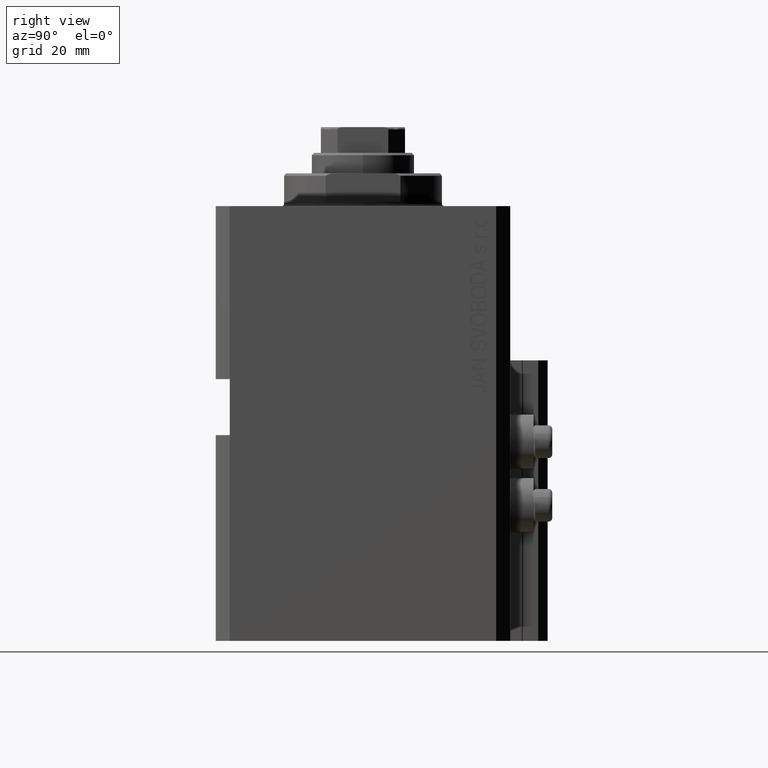
[diagram: clean part render]
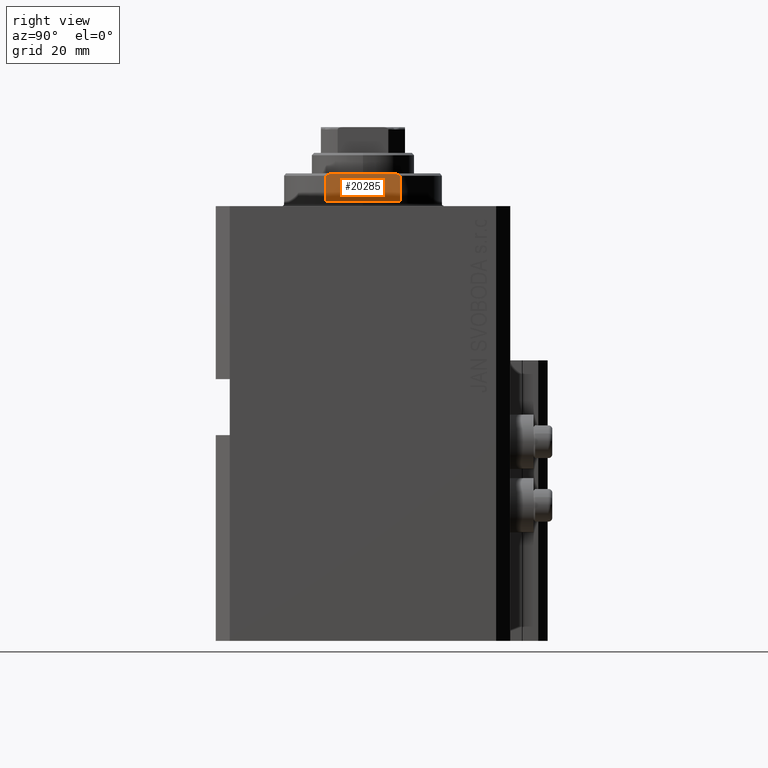
[diagram: same view with one face highlighted and labeled with its STEP entity id]
A machine part, right view. The second image highlights one B-rep face of the part: STEP entity #20285.
In plain terms, the highlighted planar face has unit normal (-1, 0, 0).
Its self-contained STEP definition (entity closure, byte-faithful):
#677 = EDGE_CURVE ( 'NONE', #8211, #29771, #726, .T. ) ;
#726 = B_SPLINE_CURVE_WITH_KNOTS ( 'NONE', 3,
 ( #40851, #4033, #11721, #23046 ),
 .UNSPECIFIED., .F., .F.,
 ( 4, 4 ),
 ( 0.04875332532859016216, 0.04998905627745618696 ),
 .UNSPECIFIED. ) ;
#1715 = CARTESIAN_POINT ( 'NONE',  ( -15.00000000000000000, -42.42640687119285303, -1.000000000000000000 ) ) ;
#2493 = LINE ( 'NONE', #28238, #42638 ) ;
#2594 = CARTESIAN_POINT ( 'NONE',  ( -15.00000000000000000, 8.000000000000001776, -6.500000000000000888 ) ) ;
#4033 = CARTESIAN_POINT ( 'NONE',  ( -15.00000000000000000, -7.254193676168137372, -6.841555306644506729 ) ) ;
#4868 = CARTESIAN_POINT ( 'NONE',  ( -15.00000000000000000, 7.253126193285938328, -6.842000017654663147 ) ) ;
#5120 = CARTESIAN_POINT ( 'NONE',  ( -15.00000000000000000, -8.000000000000001776, -6.500000000000000888 ) ) ;
#5575 = VECTOR ( 'NONE', #8681, 1000.000000000000000 ) ;
#5702 = EDGE_CURVE ( 'NONE', #18283, #8211, #2493, .T. ) ;
#6747 = CARTESIAN_POINT ( 'NONE',  ( -15.00000000000000000, -8.000000000000001776, -7.000000000000000000 ) ) ;
#7334 = CARTESIAN_POINT ( 'NONE',  ( -15.00000000000000000, 8.000000000000001776, -7.000000000000000000 ) ) ;
#7971 = PLANE ( 'NONE',  #33161 ) ;
#8211 = VERTEX_POINT ( 'NONE', #21203 ) ;
#8452 = DIRECTION ( 'NONE',  ( 0.000000000000000000, 0.000000000000000000, -1.000000000000000000 ) ) ;
#8681 = DIRECTION ( 'NONE',  ( -0.000000000000000000, -1.000000000000000000, -0.000000000000000000 ) ) ;
#11543 = ORIENTED_EDGE ( 'NONE', *, *, #5702, .T. ) ;
#11607 = VECTOR ( 'NONE', #14432, 1000.000000000000000 ) ;
#11721 = CARTESIAN_POINT ( 'NONE',  ( -15.00000000000000000, -7.629305121525813860, -6.674444648693738102 ) ) ;
#12318 = CARTESIAN_POINT ( 'NONE',  ( -14.99999999999999645, 6.873863542433781504, -7.000000000000000000 ) ) ;
#12806 = VECTOR ( 'NONE', #42969, 1000.000000000000000 ) ;
#14154 = VERTEX_POINT ( 'NONE', #2594 ) ;
#14432 = DIRECTION ( 'NONE',  ( 0.000000000000000000, 0.000000000000000000, -1.000000000000000000 ) ) ;
#18283 = VERTEX_POINT ( 'NONE', #40832 ) ;
#18680 = B_SPLINE_CURVE_WITH_KNOTS ( 'NONE', 3,
 ( #38783, #27008, #4868, #12318 ),
 .UNSPECIFIED., .F., .F.,
 ( 4, 4 ),
 ( 0.03336039268696994881, 0.03459498301323800373 ),
 .UNSPECIFIED. ) ;
#20285 = ADVANCED_FACE ( 'NONE', ( #23135 ), #7971, .F. ) ;
#21203 = CARTESIAN_POINT ( 'NONE',  ( -15.00000000000000000, -6.873863542433783280, -7.000000000000000000 ) ) ;
#21308 = LINE ( 'NONE', #7334, #12806 ) ;
#21653 = ORIENTED_EDGE ( 'NONE', *, *, #40698, .F. ) ;
#23046 = CARTESIAN_POINT ( 'NONE',  ( -15.00000000000000000, -8.000000000000001776, -6.500000000000000888 ) ) ;
#23135 = FACE_OUTER_BOUND ( 'NONE', #46153, .T. ) ;
#24628 = ORIENTED_EDGE ( 'NONE', *, *, #677, .T. ) ;
#25324 = EDGE_CURVE ( 'NONE', #31140, #29771, #28419, .T. ) ;
#26982 = CARTESIAN_POINT ( 'NONE',  ( -15.00000000000000000, -42.42640687119285303, -1.000000000000000000 ) ) ;
#27008 = CARTESIAN_POINT ( 'NONE',  ( -15.00000000000000000, 7.628315461082487481, -6.674910371255303509 ) ) ;
#27500 = EDGE_CURVE ( 'NONE', #36066, #31140, #41650, .T. ) ;
#28238 = CARTESIAN_POINT ( 'NONE',  ( -15.00000000000000000, -42.42640687119285303, -7.000000000000000000 ) ) ;
#28419 = LINE ( 'NONE', #6747, #11607 ) ;
#29771 = VERTEX_POINT ( 'NONE', #5120 ) ;
#30595 = DIRECTION ( 'NONE',  ( 1.000000000000000000, 0.000000000000000000, 0.000000000000000000 ) ) ;
#31046 = ORIENTED_EDGE ( 'NONE', *, *, #27500, .F. ) ;
#31140 = VERTEX_POINT ( 'NONE', #35612 ) ;
#32995 = EDGE_CURVE ( 'NONE', #14154, #18283, #18680, .T. ) ;
#33161 = AXIS2_PLACEMENT_3D ( 'NONE', #26982, #30595, #8452 ) ;
#35612 = CARTESIAN_POINT ( 'NONE',  ( -14.99999999999999645, -8.000000000000003553, -1.000000000000000000 ) ) ;
#35695 = DIRECTION ( 'NONE',  ( -0.000000000000000000, -1.000000000000000000, -0.000000000000000000 ) ) ;
#36066 = VERTEX_POINT ( 'NONE', #44006 ) ;
#38007 = ORIENTED_EDGE ( 'NONE', *, *, #32995, .T. ) ;
#38783 = CARTESIAN_POINT ( 'NONE',  ( -15.00000000000000000, 8.000000000000001776, -6.500000000000000888 ) ) ;
#40698 = EDGE_CURVE ( 'NONE', #14154, #36066, #21308, .T. ) ;
#40832 = CARTESIAN_POINT ( 'NONE',  ( -14.99999999999999645, 6.873863542433781504, -7.000000000000000000 ) ) ;
#40851 = CARTESIAN_POINT ( 'NONE',  ( -15.00000000000000000, -6.873863542433783280, -7.000000000000000000 ) ) ;
#41650 = LINE ( 'NONE', #1715, #5575 ) ;
#42638 = VECTOR ( 'NONE', #35695, 1000.000000000000000 ) ;
#42969 = DIRECTION ( 'NONE',  ( -0.000000000000000000, -0.000000000000000000, 1.000000000000000000 ) ) ;
#44006 = CARTESIAN_POINT ( 'NONE',  ( -14.99999999999999645, 8.000000000000003553, -1.000000000000000000 ) ) ;
#46121 = ORIENTED_EDGE ( 'NONE', *, *, #25324, .F. ) ;
#46153 = EDGE_LOOP ( 'NONE', ( #38007, #11543, #24628, #46121, #31046, #21653 ) ) ;